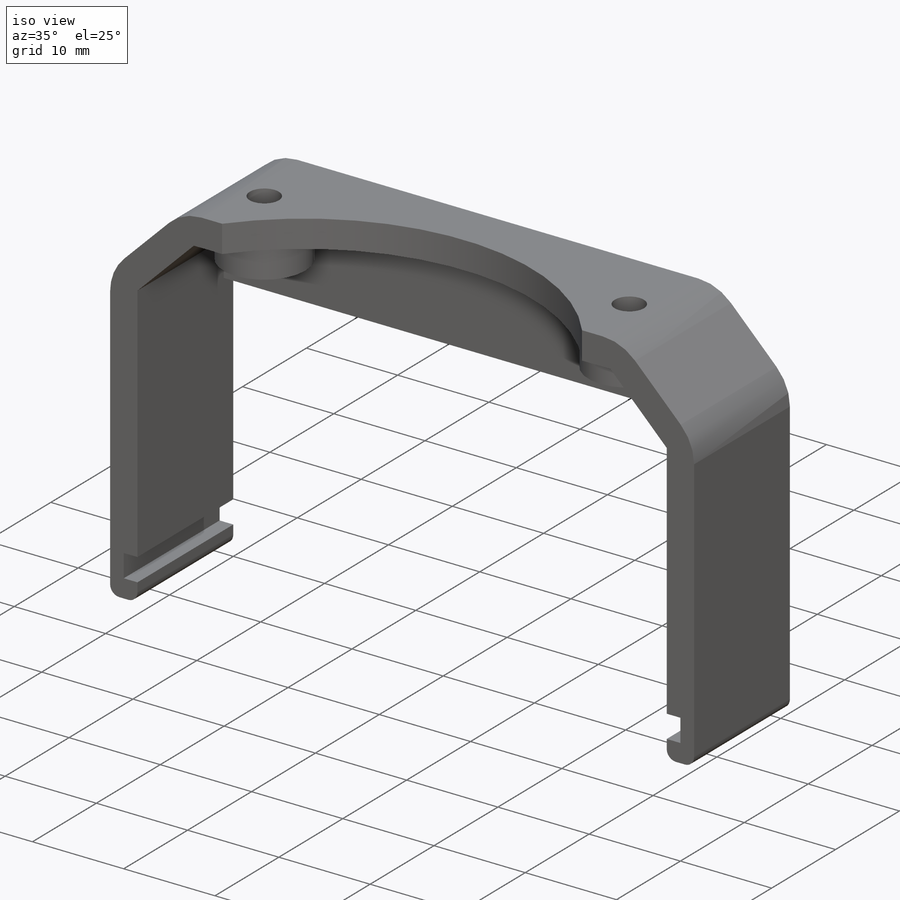
[diagram: iso view]
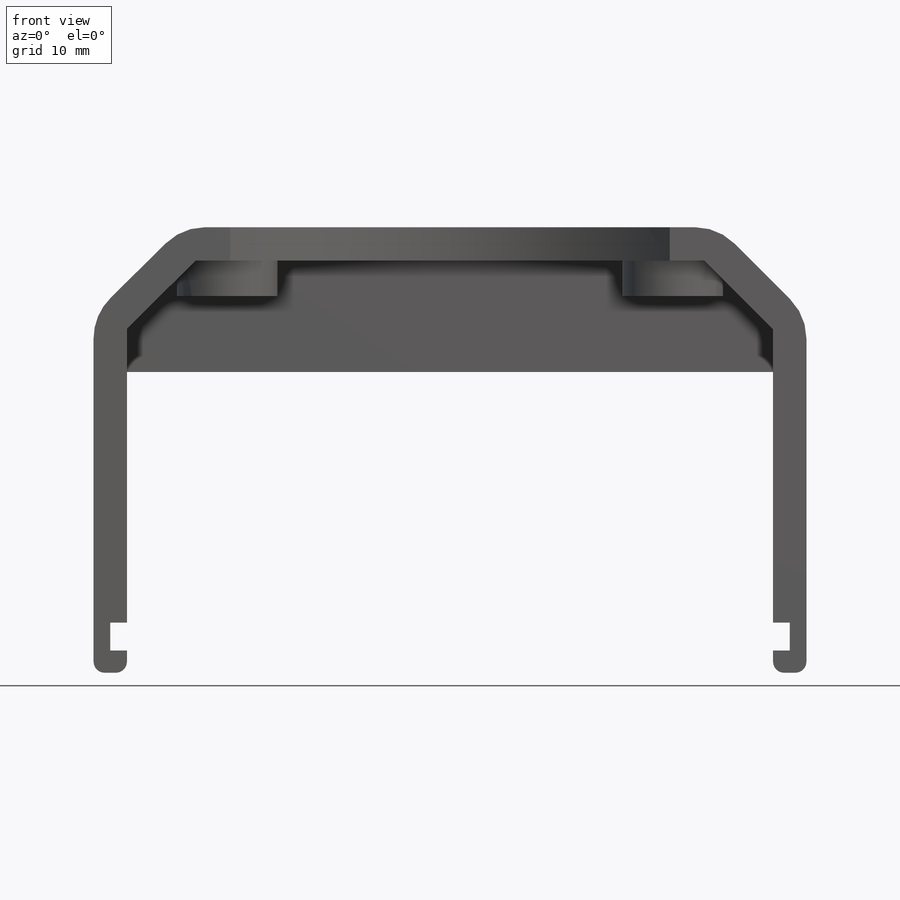
[diagram: front view]
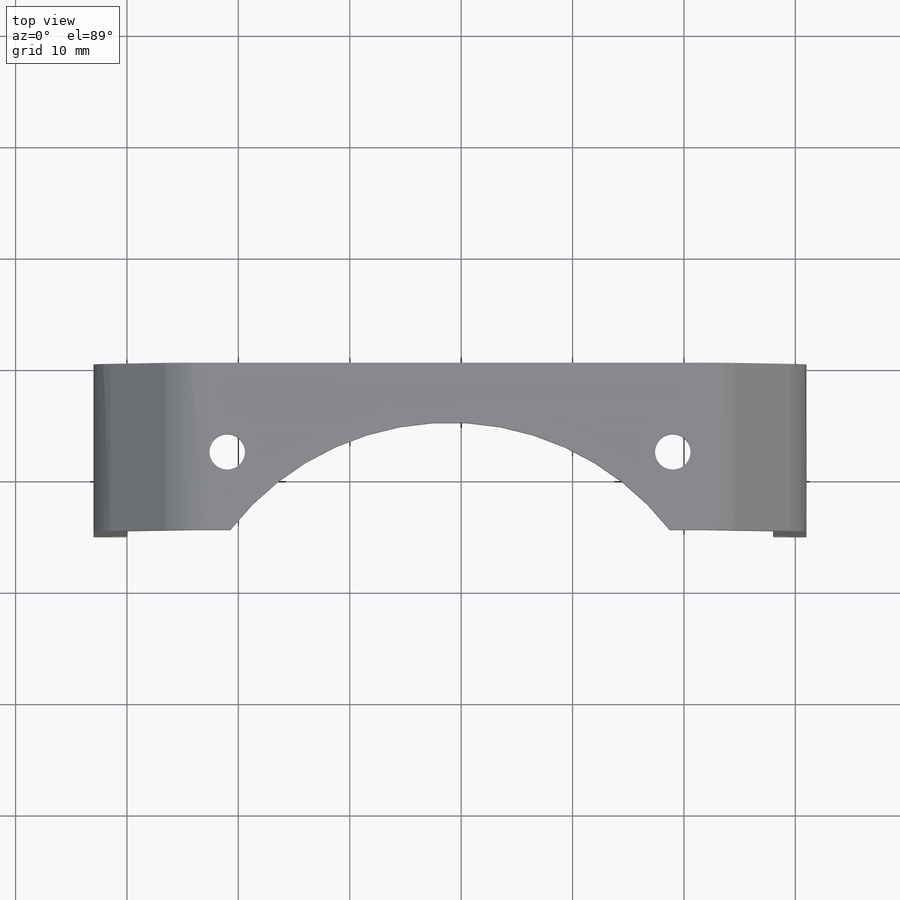
[diagram: top view]
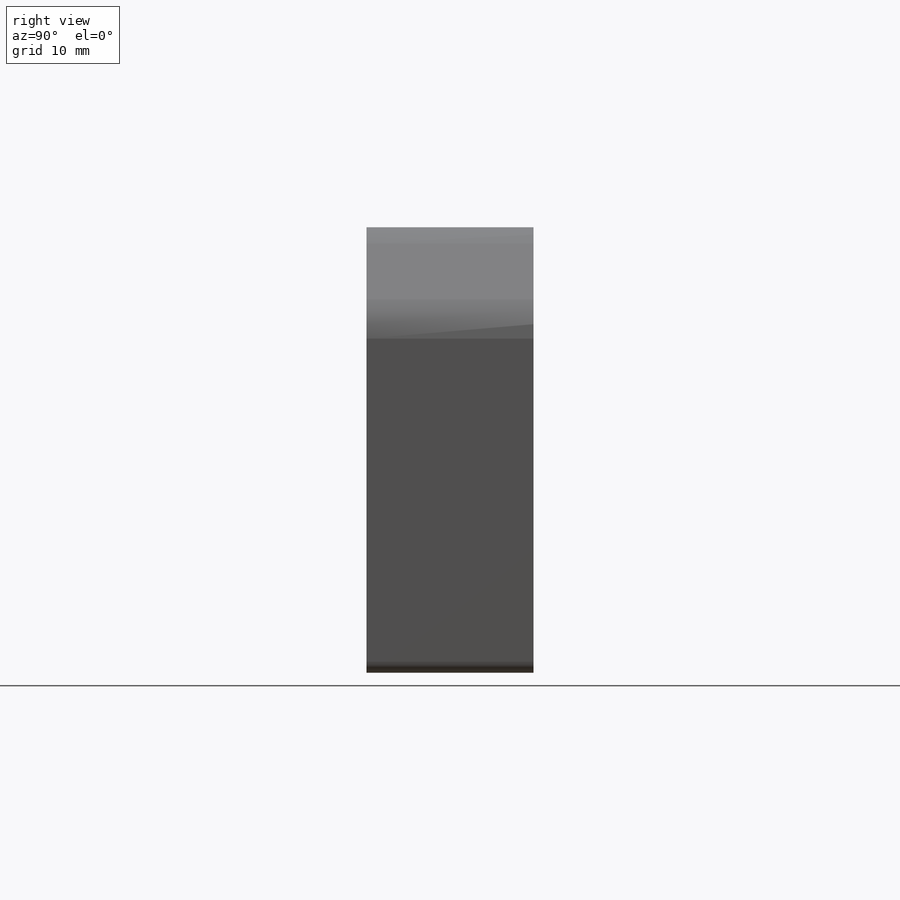
[diagram: right view]
SOLIDWORKS PART (.sldprt)
format: sldprt  version: not decoded by parser v0  size: 259,072 bytes
history: native  units: mm
features: sketch x5, plane x4, extrude x3, cut_extrude x2, material x1 (+8 scaffold rows collapsed)
feature tree (23):
  scaffold x8  (default folders/planes/origin — collapsed)
  material  "Material <sin especificar>"
  plane  "Alzado"
  plane  "Planta"
  plane  "Vista lateral"
  sketch  "Croquis1"  dims[c1.D9=1.0mm c1.D10=1.0mm c1.D2=~36.343146mm c1.D1=64.0mm c2.D2=3.0mm c2.D3=3.0mm c2.D4=3.0mm c2.D5=44.0mm c2.D6=22.0mm c2.D7=2.5mm c2.D8=1.5mm c2.D11=40.0mm c2.D13=3.0mm c2.D14=3.0mm c2.D15=3.0mm c2.D1=0.0mm c2.D12=2.0]
  plane  "Plano1"  Offset=40mm
  sketch  "Croquis2"  dims[c1.D2=3.2mm c1.D3=3.2mm c1.D4=3.2mm c1.D5=3.2mm c1.D1=8.0mm c2.D4=40.0mm c2.D5=20.0mm c2.D1=8.0mm]
  extrude  "Saliente-Extruir2"  Depth=15mm
  sketch  "Croquis3"
  extrude  "Saliente-Extruir3"  Depth=1.5mm
  cut_extrude  "Cortar-Extruir1"  Depth=10mm
  sketch  "Croquis4"  dims[D1=6.1mm D2=9.0mm D3=2.0]
  extrude  "Saliente-Extruir4"  Depth=3.2mm
  sketch  "Croquis5"  dims[D1=50.0mm D2=30.0mm]
  cut_extrude  "Cortar-Extruir2"  [1 undecoded]
decode coverage: 8 of 10 modeling features carry decoded parameters
note: ~ marks probable driven/reference dimensions
note: 1 parameter value undecoded
note: suppression state not decoded; provenance and decode notes live in map.json
